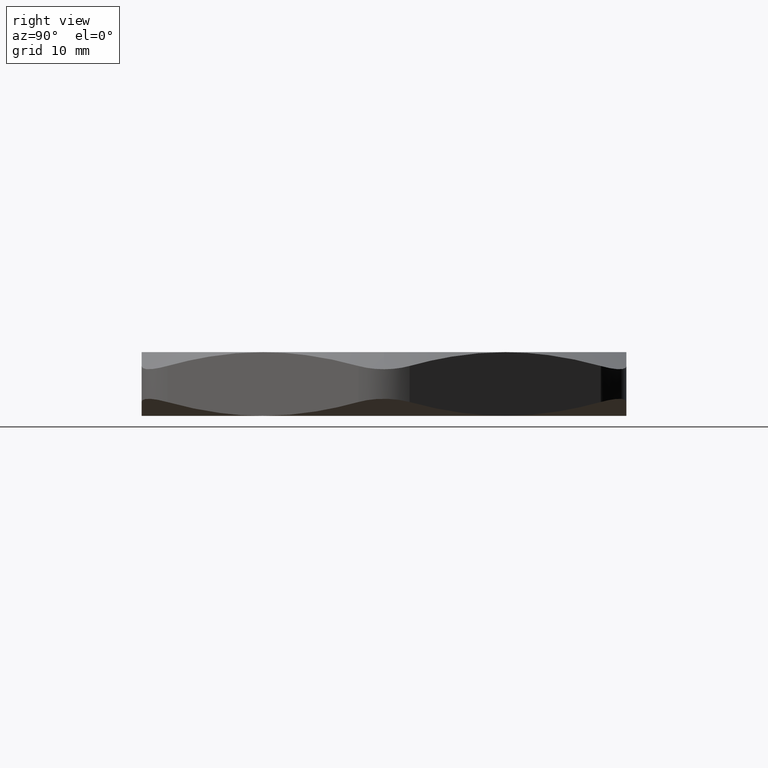
[diagram: clean part render]
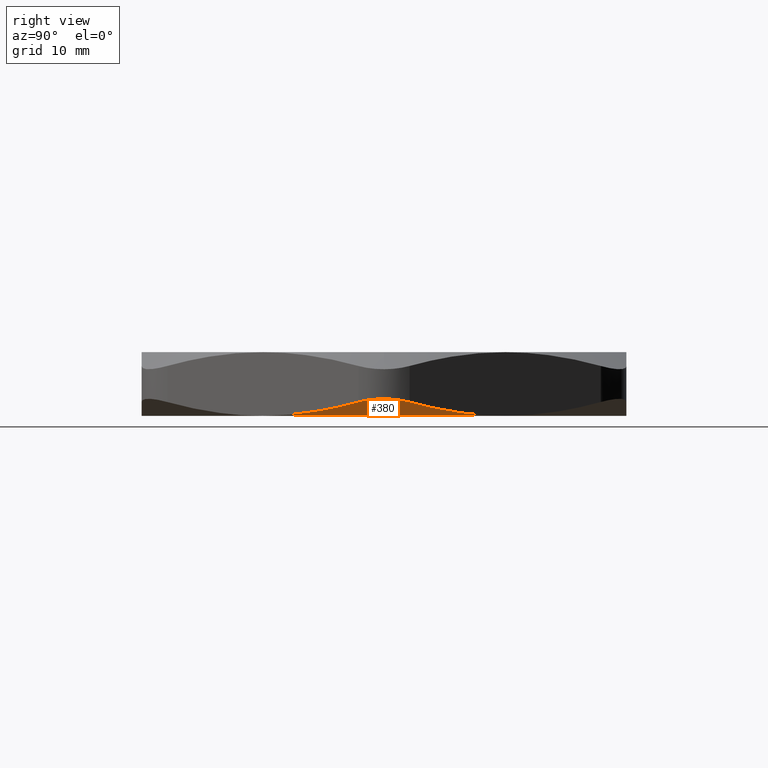
[diagram: same view with one face highlighted and labeled with its STEP entity id]
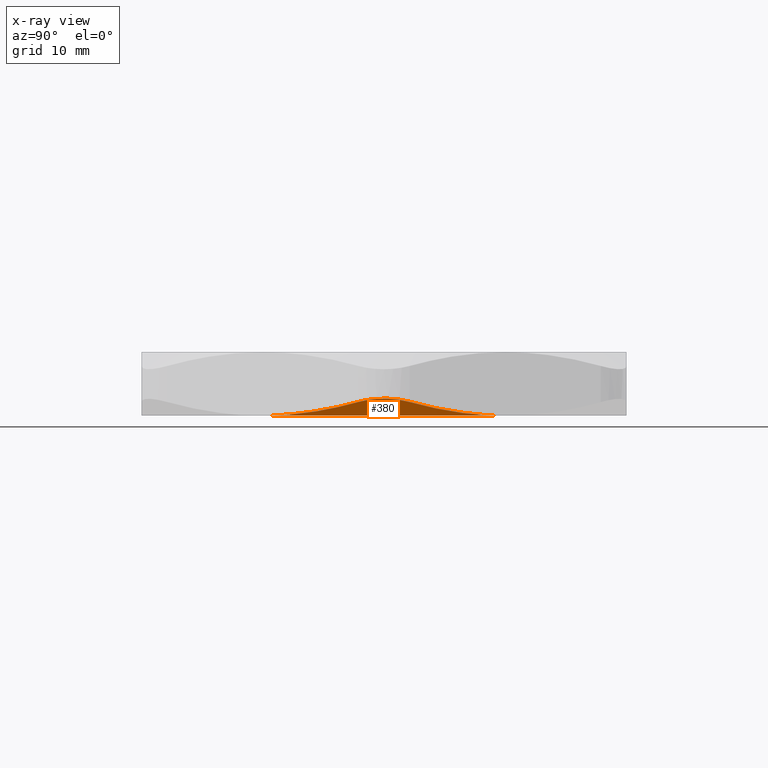
[diagram: x-ray of the same camera — body ghosted, the highlighted face saturated]
A machine part, right view. The second image highlights one B-rep face of the part: STEP entity #380.
The next image is the same camera in x-ray: the body ghosted, the highlighted face saturated — about 0% of this face is hidden behind the body in this view.
In plain terms, the highlighted conical surface has half-angle 60 deg.
Its self-contained STEP definition (entity closure, byte-faithful):
#139 = VERTEX_POINT ( 'NONE', #944 ) ;
#155 = EDGE_CURVE ( 'NONE', #139, #156, #962, .T. ) ;
#156 = VERTEX_POINT ( 'NONE', #961 ) ;
#228 = VERTEX_POINT ( 'NONE', #1159 ) ;
#230 = EDGE_CURVE ( 'NONE', #231, #228, #1158, .T. ) ;
#231 = VERTEX_POINT ( 'NONE', #1157 ) ;
#308 = EDGE_CURVE ( 'NONE', #231, #156, #1351, .T. ) ;
#377 = ORIENTED_EDGE ( 'NONE', *, *, #308, .F. ) ;
#380 = ADVANCED_FACE ( 'NONE', ( #1506 ), #1488, .T. ) ;
#381 = EDGE_LOOP ( 'NONE', ( #384, #385, #383, #377 ) ) ;
#382 = EDGE_CURVE ( 'NONE', #228, #139, #1481, .T. ) ;
#383 = ORIENTED_EDGE ( 'NONE', *, *, #155, .T. ) ;
#384 = ORIENTED_EDGE ( 'NONE', *, *, #230, .T. ) ;
#385 = ORIENTED_EDGE ( 'NONE', *, *, #382, .T. ) ;
#944 = CARTESIAN_POINT ( 'NONE',  ( 1.290377851638813600, -0.1249999999999997100, 0.06721404586569519600 ) ) ;
#955 = CARTESIAN_POINT ( 'NONE',  ( 1.067459181867328900, -0.5111064619998796400, -1.814117808292674600E-017 ) ) ;
#956 = CARTESIAN_POINT ( 'NONE',  ( 1.112566298939979600, -0.4329786434470912500, 0.006155447746287066500 ) ) ;
#957 = CARTESIAN_POINT ( 'NONE',  ( 1.202005897894103700, -0.2780647138499641700, 0.02925203046129721400 ) ) ;
#958 = CARTESIAN_POINT ( 'NONE',  ( 1.246341198180636900, -0.2012737211848654700, 0.04615392317019728600 ) ) ;
#959 = CARTESIAN_POINT ( 'NONE',  ( 1.290377851638813600, -0.1249999999999997100, 0.06721404586569519600 ) ) ;
#961 = CARTESIAN_POINT ( 'NONE',  ( 1.021909976465637400, -0.5899999999999999700, 0.0000000000000000000 ) ) ;
#962 = B_SPLINE_CURVE_WITH_KNOTS ( 'NONE', 3,
 ( #959, #958, #957, #956, #955, #1015 ),
 .UNSPECIFIED., .F., .F.,
 ( 4, 2, 4 ),
 ( 0.003767047510153076000, 0.01063822244227695400, 0.01750939737440082900 ),
 .UNSPECIFIED. ) ;
#1015 = CARTESIAN_POINT ( 'NONE',  ( 1.021909976465637400, -0.5899999999999999700, 0.0000000000000000000 ) ) ;
#1149 = CARTESIAN_POINT ( 'NONE',  ( 1.290377851638813600, 0.1250000000000002200, 0.06721404586569519600 ) ) ;
#1150 = CARTESIAN_POINT ( 'NONE',  ( 1.246431231723729600, 0.2011177785138447400, 0.04619698088043033100 ) ) ;
#1151 = CARTESIAN_POINT ( 'NONE',  ( 1.202143552112761500, 0.2778262897493735100, 0.02929794194380955600 ) ) ;
#1152 = CARTESIAN_POINT ( 'NONE',  ( 1.135048905416903500, 0.3940376267424819900, 0.01195612090221790000 ) ) ;
#1153 = CARTESIAN_POINT ( 'NONE',  ( 1.112573565966476800, 0.4329660565879780400, 0.007509197429469025000 ) ) ;
#1154 = CARTESIAN_POINT ( 'NONE',  ( 1.067381612085253300, 0.5112408168035675900, 0.001528555022778238700 ) ) ;
#1155 = CARTESIAN_POINT ( 'NONE',  ( 1.044586880877923100, 0.5507224493995391800, 1.547335777661397500E-016 ) ) ;
#1156 = CARTESIAN_POINT ( 'NONE',  ( 1.021909976465637600, 0.5899999999999998600, 0.0000000000000000000 ) ) ;
#1157 = CARTESIAN_POINT ( 'NONE',  ( 1.021909976465637600, 0.5899999999999998600, 0.0000000000000000000 ) ) ;
#1158 = B_SPLINE_CURVE_WITH_KNOTS ( 'NONE', 3,
 ( #1156, #1155, #1154, #1153, #1152, #1151, #1150, #1149 ),
 .UNSPECIFIED., .F., .F.,
 ( 4, 2, 2, 4 ),
 ( 0.01750939737440081200, 0.02093024688783880600, 0.02435109640127679900, 0.03119279542815279300 ),
 .UNSPECIFIED. ) ;
#1159 = CARTESIAN_POINT ( 'NONE',  ( 1.290377851638813600, 0.1250000000000002200, 0.06721404586569519600 ) ) ;
#1347 = DIRECTION ( 'NONE',  ( -1.000000000000000000, 0.0000000000000000000, 0.0000000000000000000 ) ) ;
#1348 = DIRECTION ( 'NONE',  ( 0.0000000000000000000, 0.0000000000000000000, -1.000000000000000000 ) ) ;
#1349 = CARTESIAN_POINT ( 'NONE',  ( 0.0000000000000000000, 0.0000000000000000000, 0.0000000000000000000 ) ) ;
#1350 = AXIS2_PLACEMENT_3D ( 'NONE', #1349, #1348, #1347 ) ;
#1351 = CIRCLE ( 'NONE', #1350, 1.179999999999999700 ) ;
#1478 = CARTESIAN_POINT ( 'NONE',  ( 1.290377851638813600, 0.1250000000000002200, 0.06721404586569519600 ) ) ;
#1481 = B_SPLINE_CURVE_WITH_KNOTS ( 'NONE', 3,
 ( #1478, #1540, #1539, #1538, #1537, #1536, #1535, #1534, #1533, #1532, #1531, #1530, #1529, #1528 ),
 .UNSPECIFIED., .F., .F.,
 ( 4, 2, 2, 2, 2, 2, 4 ),
 ( 0.0000000000000000000, 0.001669271586080331100, 0.002503907379120496800, 0.003338543172160662300, 0.004173178965200827700, 0.005007814758240993600, 0.006677086344321322800 ),
 .UNSPECIFIED. ) ;
#1484 = DIRECTION ( 'NONE',  ( -1.000000000000000000, 0.0000000000000000000, 0.0000000000000000000 ) ) ;
#1485 = DIRECTION ( 'NONE',  ( 0.0000000000000000000, 0.0000000000000000000, 1.000000000000000000 ) ) ;
#1486 = CARTESIAN_POINT ( 'NONE',  ( 0.0000000000000000000, 0.0000000000000000000, 0.0000000000000000000 ) ) ;
#1487 = AXIS2_PLACEMENT_3D ( 'NONE', #1486, #1485, #1484 ) ;
#1488 = CONICAL_SURFACE ( 'NONE', #1487, 1.179999999999999900, 1.047197551196600100 ) ;
#1506 = FACE_OUTER_BOUND ( 'NONE', #381, .T. ) ;
#1528 = CARTESIAN_POINT ( 'NONE',  ( 1.290377851638813600, -0.1249999999999997100, 0.06721404586569519600 ) ) ;
#1529 = CARTESIAN_POINT ( 'NONE',  ( 1.301179324903586600, -0.1062912995088180500, 0.07237975066804354400 ) ) ;
#1530 = CARTESIAN_POINT ( 'NONE',  ( 1.309633521215260100, -0.08596173029005493800, 0.07637160150552677100 ) ) ;
#1531 = CARTESIAN_POINT ( 'NONE',  ( 1.318111162438620100, -0.05445433847798839700, 0.08036293289793407200 ) ) ;
#1532 = CARTESIAN_POINT ( 'NONE',  ( 1.320262292194869700, -0.04374042279998522500, 0.08137240177445223500 ) ) ;
#1533 = CARTESIAN_POINT ( 'NONE',  ( 1.323156963948952200, -0.02187246060466818000, 0.08272984357175636200 ) ) ;
#1534 = CARTESIAN_POINT ( 'NONE',  ( 1.323880134261621500, -0.01076827507157218300, 0.08306829295617823600 ) ) ;
#1535 = CARTESIAN_POINT ( 'NONE',  ( 1.323862709342718400, 0.01116549169178950500, 0.08306013245854937400 ) ) ;
#1536 = CARTESIAN_POINT ( 'NONE',  ( 1.323135509530177300, 0.02208131324083302500, 0.08271979029129192300 ) ) ;
#1537 = CARTESIAN_POINT ( 'NONE',  ( 1.320246686176114600, 0.04381094011982410900, 0.08136507564973548300 ) ) ;
#1538 = CARTESIAN_POINT ( 'NONE',  ( 1.318056817555447200, 0.05471080628804186200, 0.08033741714334204100 ) ) ;
#1539 = CARTESIAN_POINT ( 'NONE',  ( 1.309485597971105100, 0.08640001358719504000, 0.07630181465680792300 ) ) ;
#1540 = CARTESIAN_POINT ( 'NONE',  ( 1.301176764405753900, 0.1062957344211557400, 0.07237852613360965000 ) ) ;